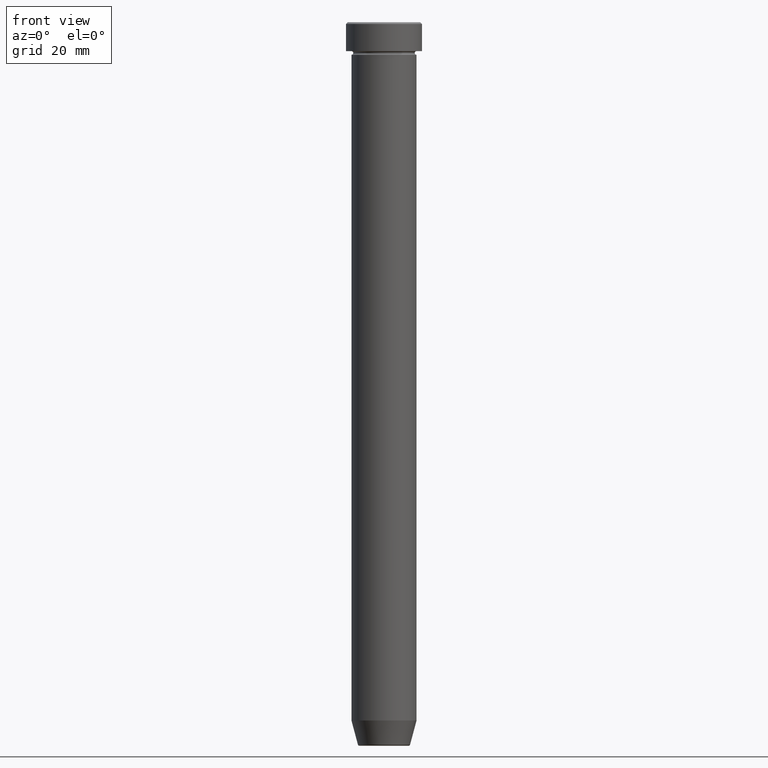
[diagram: clean part render]
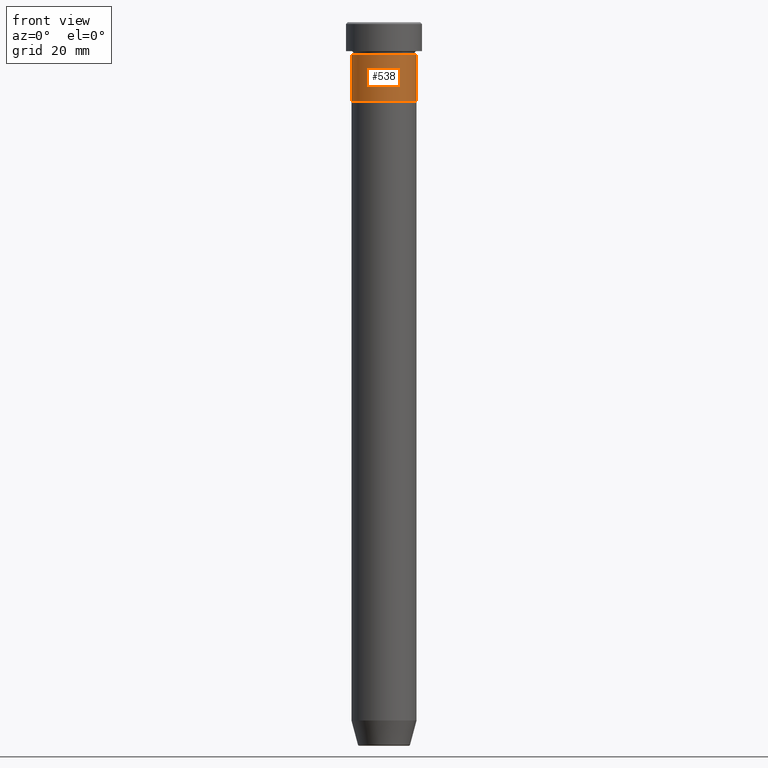
[diagram: same view with one face highlighted and labeled with its STEP entity id]
A machine part, front view. The second image highlights one B-rep face of the part: STEP entity #538.
In plain terms, the highlighted cylindrical surface (edge-blend (fillet) strip) has radius 9 mm, axis along (-0, -0, 1).
Its self-contained STEP definition (entity closure, byte-faithful):
#12 = AXIS2_PLACEMENT_3D ( 'NONE', #475, #14, #404 ) ;
#14 = DIRECTION ( 'NONE',  ( -0.000000000000000000, -0.000000000000000000, 1.000000000000000000 ) ) ;
#35 = CARTESIAN_POINT ( 'NONE',  ( 9.000000000000000000, 0.000000000000000000, -22.00000000000000000 ) ) ;
#36 = VERTEX_POINT ( 'NONE', #35 ) ;
#61 = ORIENTED_EDGE ( 'NONE', *, *, #382, .T. ) ;
#70 = CIRCLE ( 'NONE', #12, 9.000000000000000000 ) ;
#123 = DIRECTION ( 'NONE',  ( 1.000000000000000000, 0.000000000000000000, 0.000000000000000000 ) ) ;
#139 = DIRECTION ( 'NONE',  ( 1.000000000000000000, 0.000000000000000000, 0.000000000000000000 ) ) ;
#168 = ORIENTED_EDGE ( 'NONE', *, *, #541, .F. ) ;
#173 = LINE ( 'NONE', #546, #293 ) ;
#177 = AXIS2_PLACEMENT_3D ( 'NONE', #587, #539, #123 ) ;
#208 = CARTESIAN_POINT ( 'NONE',  ( -9.000000000000000000, 1.102182119232617714E-15, -9.000000000000001776 ) ) ;
#215 = LINE ( 'NONE', #347, #455 ) ;
#218 = DIRECTION ( 'NONE',  ( -0.000000000000000000, -0.000000000000000000, 1.000000000000000000 ) ) ;
#227 = DIRECTION ( 'NONE',  ( -0.000000000000000000, -0.000000000000000000, 1.000000000000000000 ) ) ;
#233 = VERTEX_POINT ( 'NONE', #208 ) ;
#293 = VECTOR ( 'NONE', #451, 1000.000000000000000 ) ;
#317 = AXIS2_PLACEMENT_3D ( 'NONE', #590, #227, #139 ) ;
#319 = CYLINDRICAL_SURFACE ( 'NONE', #177, 9.000000000000000000 ) ;
#325 = EDGE_CURVE ( 'NONE', #233, #338, #70, .T. ) ;
#338 = VERTEX_POINT ( 'NONE', #488 ) ;
#347 = CARTESIAN_POINT ( 'NONE',  ( 9.000000000000000000, 0.000000000000000000, 0.000000000000000000 ) ) ;
#366 = EDGE_CURVE ( 'NONE', #36, #338, #215, .T. ) ;
#369 = CARTESIAN_POINT ( 'NONE',  ( -9.000000000000000000, 1.102182119232617714E-15, -22.00000000000000000 ) ) ;
#370 = EDGE_LOOP ( 'NONE', ( #168, #61, #450, #458 ) ) ;
#382 = EDGE_CURVE ( 'NONE', #476, #36, #490, .T. ) ;
#404 = DIRECTION ( 'NONE',  ( 1.000000000000000000, 0.000000000000000000, 0.000000000000000000 ) ) ;
#406 = FACE_OUTER_BOUND ( 'NONE', #370, .T. ) ;
#450 = ORIENTED_EDGE ( 'NONE', *, *, #366, .T. ) ;
#451 = DIRECTION ( 'NONE',  ( -0.000000000000000000, -0.000000000000000000, 1.000000000000000000 ) ) ;
#455 = VECTOR ( 'NONE', #218, 1000.000000000000000 ) ;
#458 = ORIENTED_EDGE ( 'NONE', *, *, #325, .F. ) ;
#475 = CARTESIAN_POINT ( 'NONE',  ( 0.000000000000000000, 0.000000000000000000, -9.000000000000001776 ) ) ;
#476 = VERTEX_POINT ( 'NONE', #369 ) ;
#488 = CARTESIAN_POINT ( 'NONE',  ( 9.000000000000000000, 0.000000000000000000, -9.000000000000001776 ) ) ;
#490 = CIRCLE ( 'NONE', #317, 9.000000000000000000 ) ;
#538 = ADVANCED_FACE ( 'NONE', ( #406 ), #319, .T. ) ;
#539 = DIRECTION ( 'NONE',  ( -0.000000000000000000, -0.000000000000000000, 1.000000000000000000 ) ) ;
#541 = EDGE_CURVE ( 'NONE', #476, #233, #173, .T. ) ;
#546 = CARTESIAN_POINT ( 'NONE',  ( -9.000000000000000000, 1.102182119232617714E-15, 0.000000000000000000 ) ) ;
#587 = CARTESIAN_POINT ( 'NONE',  ( 0.000000000000000000, 0.000000000000000000, 0.000000000000000000 ) ) ;
#590 = CARTESIAN_POINT ( 'NONE',  ( 0.000000000000000000, 0.000000000000000000, -22.00000000000000000 ) ) ;